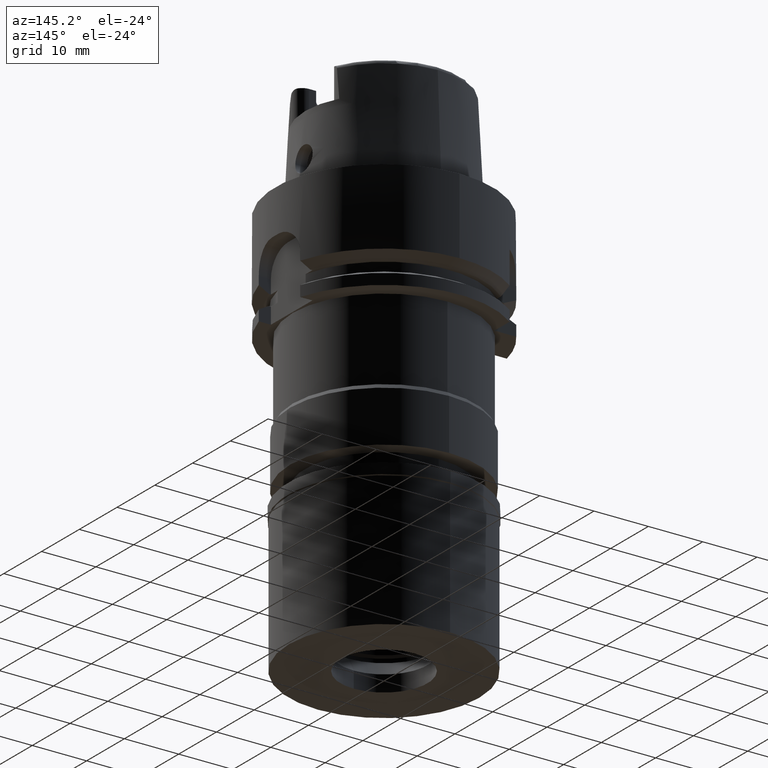
[diagram: clean part render]
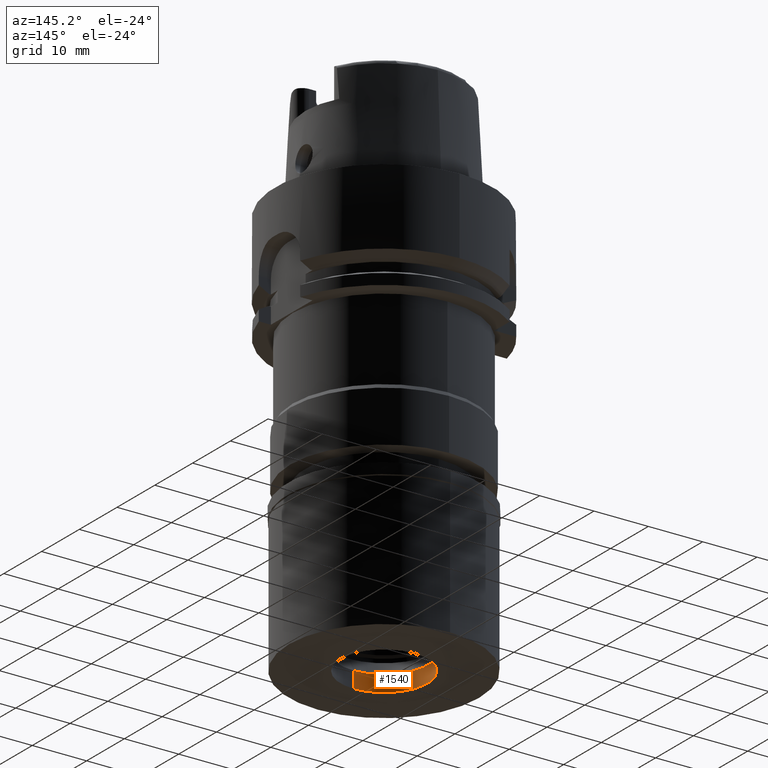
[diagram: same view with one face highlighted and labeled with its STEP entity id]
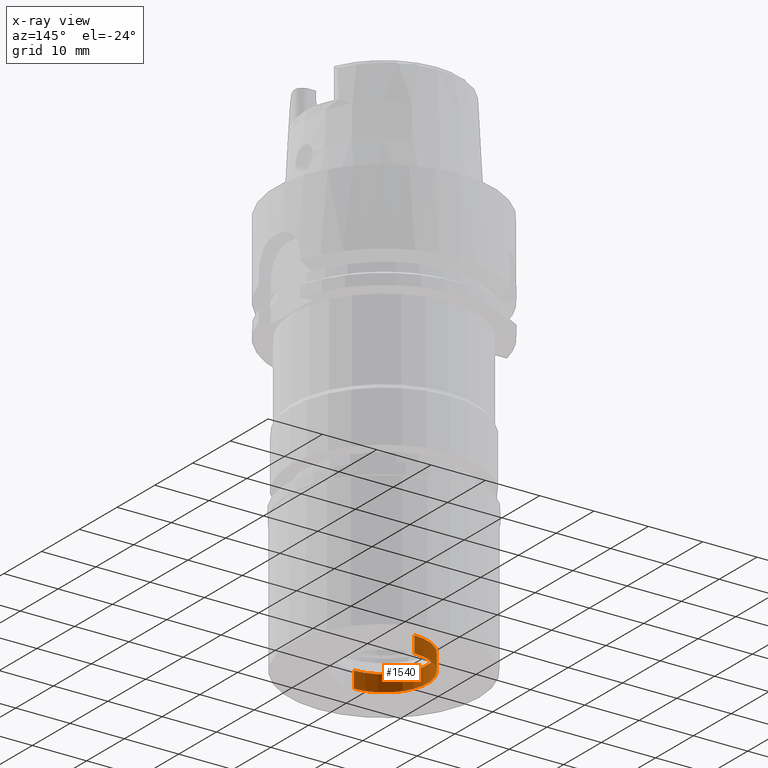
[diagram: x-ray of the same camera — body ghosted, the highlighted face saturated]
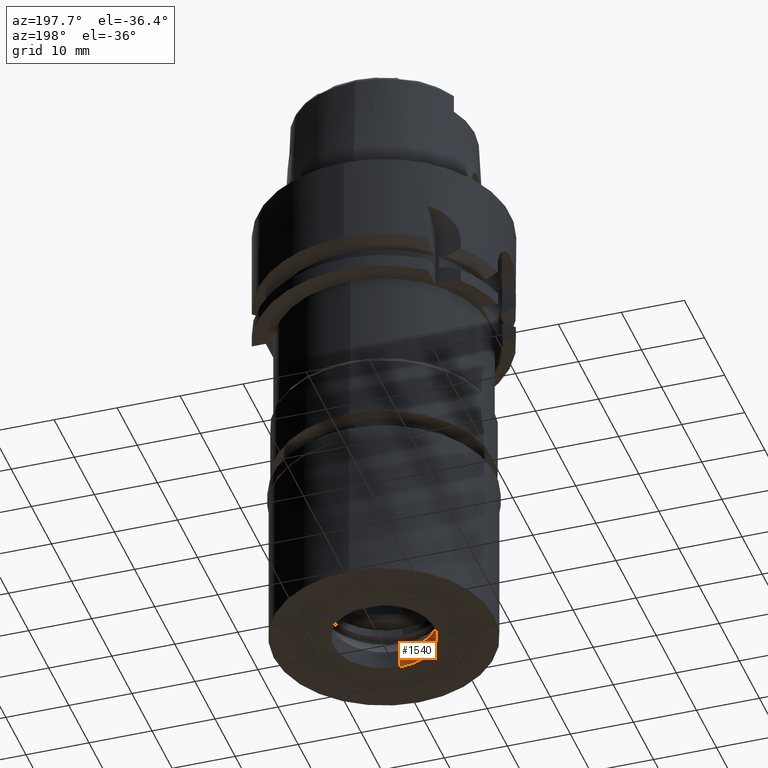
[diagram: same view with one face highlighted and labeled with its STEP entity id]
A machine part, auxiliary view. The second image highlights one B-rep face of the part: STEP entity #1540.
The next image is the same camera in x-ray: the body ghosted, the highlighted face saturated — about 0% of this face is hidden behind the body in this view.
A second angle (auxiliary view) of the same face is appended — the face is thin or edge-on in the first view.
In plain terms, the highlighted cylindrical surface (partial cylindrical patch) has radius 8 mm, axis along (0, 0, -1).
Its self-contained STEP definition (entity closure, byte-faithful):
#261 = VECTOR ( 'NONE', #1706, 1000.000000000000000 ) ;
#276 = CARTESIAN_POINT ( 'NONE',  ( 0.0000000000000000000, 0.0000000000000000000, -26.70000000000000284 ) ) ;
#299 = EDGE_CURVE ( 'NONE', #1287, #3889, #2570, .T. ) ;
#620 = AXIS2_PLACEMENT_3D ( 'NONE', #276, #3589, #733 ) ;
#733 = DIRECTION ( 'NONE',  ( 0.0000000000000000000, -1.000000000000000000, 0.0000000000000000000 ) ) ;
#848 = CARTESIAN_POINT ( 'NONE',  ( 0.0000000000000000000, -8.000000000000000000, -26.70000000000000284 ) ) ;
#867 = CARTESIAN_POINT ( 'NONE',  ( 0.0000000000000000000, -8.000000000000000000, -23.69999999999999929 ) ) ;
#906 = EDGE_CURVE ( 'NONE', #1287, #4331, #4973, .T. ) ;
#1125 = AXIS2_PLACEMENT_3D ( 'NONE', #3491, #2251, #5163 ) ;
#1167 = DIRECTION ( 'NONE',  ( 0.0000000000000000000, 0.0000000000000000000, -1.000000000000000000 ) ) ;
#1187 = CYLINDRICAL_SURFACE ( 'NONE', #3559, 8.000000000000000000 ) ;
#1287 = VERTEX_POINT ( 'NONE', #3505 ) ;
#1344 = ORIENTED_EDGE ( 'NONE', *, *, #1478, .T. ) ;
#1478 = EDGE_CURVE ( 'NONE', #4331, #3005, #5226, .T. ) ;
#1482 = DIRECTION ( 'NONE',  ( 0.0000000000000000000, 0.0000000000000000000, 1.000000000000000000 ) ) ;
#1524 = CARTESIAN_POINT ( 'NONE',  ( 0.0000000000000000000, 8.000000000000000000, -23.69999999999999929 ) ) ;
#1540 = ADVANCED_FACE ( 'NONE', ( #1601 ), #1187, .F. ) ;
#1579 = DIRECTION ( 'NONE',  ( 0.0000000000000000000, -1.000000000000000000, 0.0000000000000000000 ) ) ;
#1601 = FACE_OUTER_BOUND ( 'NONE', #2638, .T. ) ;
#1706 = DIRECTION ( 'NONE',  ( 0.0000000000000000000, 0.0000000000000000000, 1.000000000000000000 ) ) ;
#2110 = CARTESIAN_POINT ( 'NONE',  ( 0.0000000000000000000, 8.000000000000000000, -26.70000000000000284 ) ) ;
#2251 = DIRECTION ( 'NONE',  ( 0.0000000000000000000, 0.0000000000000000000, 1.000000000000000000 ) ) ;
#2442 = ORIENTED_EDGE ( 'NONE', *, *, #3264, .T. ) ;
#2570 = LINE ( 'NONE', #848, #261 ) ;
#2638 = EDGE_LOOP ( 'NONE', ( #2442, #3827, #5153, #1344 ) ) ;
#3005 = VERTEX_POINT ( 'NONE', #1524 ) ;
#3264 = EDGE_CURVE ( 'NONE', #3005, #3889, #4872, .T. ) ;
#3375 = VECTOR ( 'NONE', #1482, 1000.000000000000000 ) ;
#3491 = CARTESIAN_POINT ( 'NONE',  ( 0.0000000000000000000, 0.0000000000000000000, -23.69999999999999929 ) ) ;
#3505 = CARTESIAN_POINT ( 'NONE',  ( 0.0000000000000000000, -8.000000000000000000, -26.70000000000000284 ) ) ;
#3559 = AXIS2_PLACEMENT_3D ( 'NONE', #5318, #1167, #1579 ) ;
#3589 = DIRECTION ( 'NONE',  ( 0.0000000000000000000, 0.0000000000000000000, -1.000000000000000000 ) ) ;
#3827 = ORIENTED_EDGE ( 'NONE', *, *, #299, .F. ) ;
#3889 = VERTEX_POINT ( 'NONE', #867 ) ;
#3967 = CARTESIAN_POINT ( 'NONE',  ( 0.0000000000000000000, 8.000000000000000000, -26.70000000000000284 ) ) ;
#4331 = VERTEX_POINT ( 'NONE', #2110 ) ;
#4872 = CIRCLE ( 'NONE', #1125, 8.000000000000000000 ) ;
#4973 = CIRCLE ( 'NONE', #620, 8.000000000000000000 ) ;
#5153 = ORIENTED_EDGE ( 'NONE', *, *, #906, .T. ) ;
#5163 = DIRECTION ( 'NONE',  ( 0.0000000000000000000, 1.000000000000000000, 0.0000000000000000000 ) ) ;
#5226 = LINE ( 'NONE', #3967, #3375 ) ;
#5318 = CARTESIAN_POINT ( 'NONE',  ( 0.0000000000000000000, 0.0000000000000000000, 0.0000000000000000000 ) ) ;